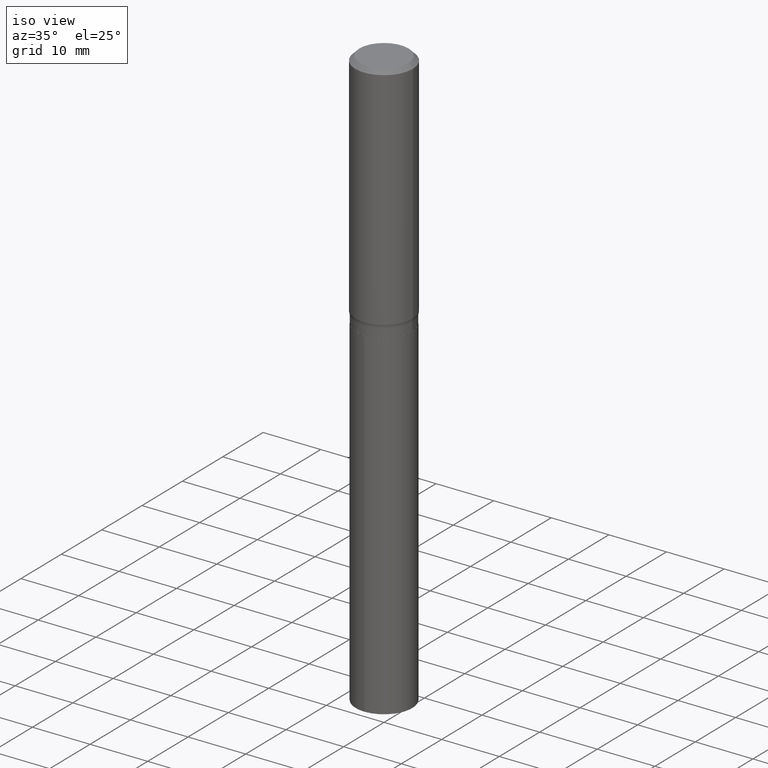
[diagram: clean part render]
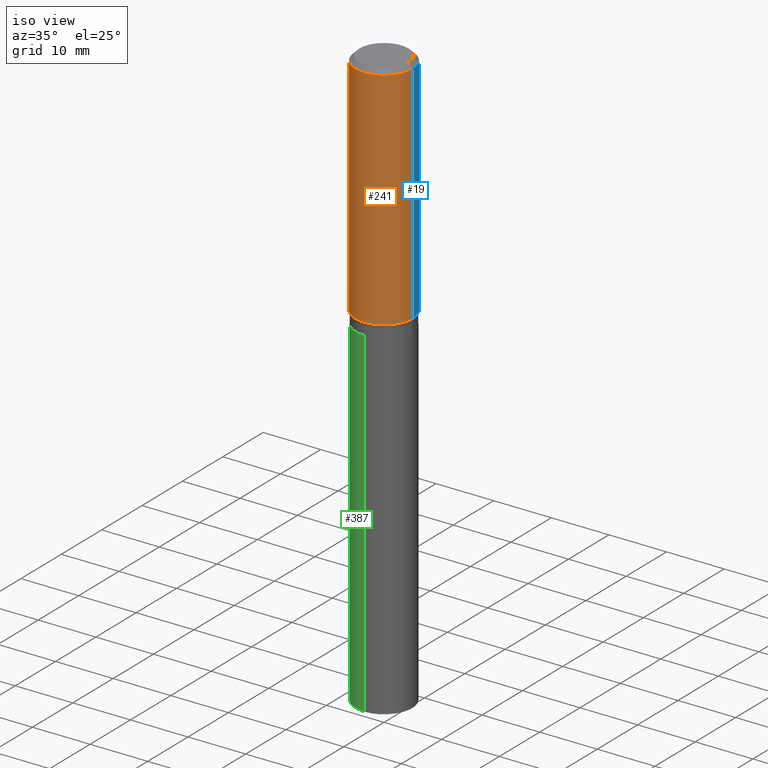
[diagram: same view with three faces highlighted in distinct colors, each labeled with its STEP entity id]
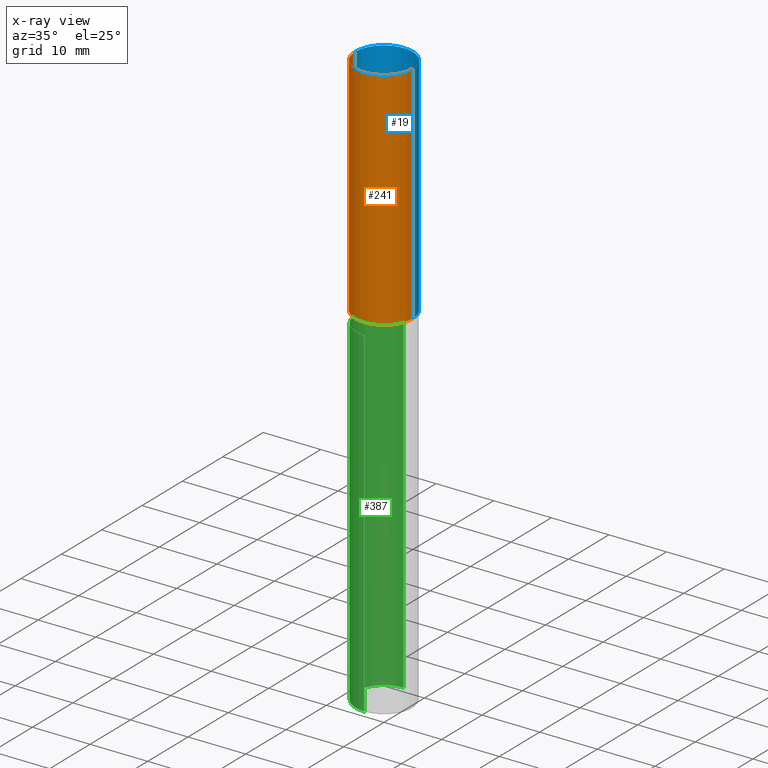
[diagram: x-ray of the same camera — body ghosted, the three highlighted faces saturated]
A machine part, iso view with three faces highlighted in distinct colors.
The next image is the same camera in x-ray (body ghosted, the three faces saturated) — at least one of them is partly hidden behind the body in this view.
Their STEP definitions:

[orange] entity #241 — the highlighted cylindrical surface (edge-blend (fillet) strip) has radius 5 mm, axis along (-0, 0, 1).
#12 = CARTESIAN_POINT ( 'NONE',  ( 3.840835966638190435E-29, -5.483695833354082254E-15, -1.570592909189378661 ) ) ;
#38 = ORIENTED_EDGE ( 'NONE', *, *, #279, .F. ) ;
#45 = CARTESIAN_POINT ( 'NONE',  ( 0.000000000000000000, 0.000000000000000000, 0.000000000000000000 ) ) ;
#53 = CARTESIAN_POINT ( 'NONE',  ( -0.1968500000000001082, 1.398703375343757985E-15, -9.682923725166787881E-30 ) ) ;
#73 = CARTESIAN_POINT ( 'NONE',  ( -0.1968500000000000250, -1.394691898949628788E-15, -0.02952750000000020636 ) ) ;
#78 = LINE ( 'NONE', #53, #197 ) ;
#81 = DIRECTION ( 'NONE',  ( 1.000000000000000000, -6.982962677686266711E-15, 4.876176775795935793E-29 ) ) ;
#89 = CIRCLE ( 'NONE', #454, 0.1968500000000001915 ) ;
#118 = CARTESIAN_POINT ( 'NONE',  ( 7.220858017463212989E-31, -1.030947152326917102E-16, -0.02952750000000020636 ) ) ;
#130 = CIRCLE ( 'NONE', #199, 0.1968500000000000250 ) ;
#143 = VERTEX_POINT ( 'NONE', #337 ) ;
#165 = CYLINDRICAL_SURFACE ( 'NONE', #219, 0.1968500000000001082 ) ;
#175 = EDGE_LOOP ( 'NONE', ( #221, #322, #294, #38 ) ) ;
#179 = EDGE_CURVE ( 'NONE', #363, #143, #295, .T. ) ;
#197 = VECTOR ( 'NONE', #423, 39.37007874015748143 ) ;
#199 = AXIS2_PLACEMENT_3D ( 'NONE', #118, #358, #424 ) ;
#219 = AXIS2_PLACEMENT_3D ( 'NONE', #45, #467, #81 ) ;
#221 = ORIENTED_EDGE ( 'NONE', *, *, #378, .F. ) ;
#224 = VERTEX_POINT ( 'NONE', #73 ) ;
#241 = ADVANCED_FACE ( 'NONE', ( #352 ), #165, .T. ) ;
#279 = EDGE_CURVE ( 'NONE', #224, #143, #130, .T. ) ;
#294 = ORIENTED_EDGE ( 'NONE', *, *, #179, .T. ) ;
#295 = LINE ( 'NONE', #372, #303 ) ;
#301 = VERTEX_POINT ( 'NONE', #317 ) ;
#303 = VECTOR ( 'NONE', #365, 39.37007874015748143 ) ;
#311 = DIRECTION ( 'NONE',  ( -2.445468806185136597E-29, 3.491481338843145583E-15, 1.000000000000000000 ) ) ;
#317 = CARTESIAN_POINT ( 'NONE',  ( -0.1968500000000001915, -4.084992458010324467E-15, -1.570592909189378661 ) ) ;
#322 = ORIENTED_EDGE ( 'NONE', *, *, #422, .T. ) ;
#337 = CARTESIAN_POINT ( 'NONE',  ( 0.1968500000000000250, -1.477690918335233294E-15, -0.02952750000000020636 ) ) ;
#352 = FACE_OUTER_BOUND ( 'NONE', #175, .T. ) ;
#358 = DIRECTION ( 'NONE',  ( -2.445468806185136597E-29, 3.491481338843145583E-15, 1.000000000000000000 ) ) ;
#363 = VERTEX_POINT ( 'NONE', #395 ) ;
#365 = DIRECTION ( 'NONE',  ( -2.445468806185136877E-29, 3.491481338843145188E-15, 1.000000000000000000 ) ) ;
#372 = CARTESIAN_POINT ( 'NONE',  ( 0.1968500000000001082, -1.374596203102542397E-15, 9.598753983154305062E-30 ) ) ;
#378 = EDGE_CURVE ( 'NONE', #301, #224, #78, .T. ) ;
#395 = CARTESIAN_POINT ( 'NONE',  ( 0.1968500000000001915, -6.858292036456625440E-15, -1.570592909189378661 ) ) ;
#402 = DIRECTION ( 'NONE',  ( 1.000000000000000000, -6.982962677686266711E-15, 0.000000000000000000 ) ) ;
#422 = EDGE_CURVE ( 'NONE', #301, #363, #89, .T. ) ;
#423 = DIRECTION ( 'NONE',  ( -2.445468806185136877E-29, 3.491481338843145188E-15, 1.000000000000000000 ) ) ;
#424 = DIRECTION ( 'NONE',  ( 1.000000000000000000, -6.982962677686265922E-15, 0.000000000000000000 ) ) ;
#454 = AXIS2_PLACEMENT_3D ( 'NONE', #12, #311, #402 ) ;
#467 = DIRECTION ( 'NONE',  ( -2.445468806185136597E-29, 3.491481338843145583E-15, 1.000000000000000000 ) ) ;

[blue] entity #19 — the highlighted cylindrical surface (edge-blend (fillet) strip) has radius 5 mm, axis along (-0, 0, 1).
#10 = CARTESIAN_POINT ( 'NONE',  ( 0.000000000000000000, 0.000000000000000000, 0.000000000000000000 ) ) ;
#19 = ADVANCED_FACE ( 'NONE', ( #243 ), #393, .T. ) ;
#26 = EDGE_LOOP ( 'NONE', ( #63, #369, #427, #101 ) ) ;
#33 = CARTESIAN_POINT ( 'NONE',  ( 7.220858017463212989E-31, -1.030947152326917102E-16, -0.02952750000000020636 ) ) ;
#53 = CARTESIAN_POINT ( 'NONE',  ( -0.1968500000000001082, 1.398703375343757985E-15, -9.682923725166787881E-30 ) ) ;
#63 = ORIENTED_EDGE ( 'NONE', *, *, #206, .T. ) ;
#73 = CARTESIAN_POINT ( 'NONE',  ( -0.1968500000000000250, -1.394691898949628788E-15, -0.02952750000000020636 ) ) ;
#78 = LINE ( 'NONE', #53, #197 ) ;
#101 = ORIENTED_EDGE ( 'NONE', *, *, #179, .F. ) ;
#113 = CIRCLE ( 'NONE', #368, 0.1968500000000000250 ) ;
#131 = DIRECTION ( 'NONE',  ( -2.445468806185136597E-29, 3.491481338843145583E-15, 1.000000000000000000 ) ) ;
#143 = VERTEX_POINT ( 'NONE', #337 ) ;
#152 = CARTESIAN_POINT ( 'NONE',  ( 3.840835966638190435E-29, -5.483695833354082254E-15, -1.570592909189378661 ) ) ;
#158 = DIRECTION ( 'NONE',  ( -2.445468806185136597E-29, 3.491481338843145583E-15, 1.000000000000000000 ) ) ;
#178 = CIRCLE ( 'NONE', #287, 0.1968500000000001915 ) ;
#179 = EDGE_CURVE ( 'NONE', #363, #143, #295, .T. ) ;
#192 = AXIS2_PLACEMENT_3D ( 'NONE', #10, #158, #278 ) ;
#197 = VECTOR ( 'NONE', #423, 39.37007874015748143 ) ;
#206 = EDGE_CURVE ( 'NONE', #363, #301, #178, .T. ) ;
#224 = VERTEX_POINT ( 'NONE', #73 ) ;
#227 = DIRECTION ( 'NONE',  ( -2.445468806185136597E-29, 3.491481338843145583E-15, 1.000000000000000000 ) ) ;
#243 = FACE_OUTER_BOUND ( 'NONE', #26, .T. ) ;
#278 = DIRECTION ( 'NONE',  ( 1.000000000000000000, -6.982962677686266711E-15, 4.876176775795935793E-29 ) ) ;
#287 = AXIS2_PLACEMENT_3D ( 'NONE', #152, #227, #415 ) ;
#290 = DIRECTION ( 'NONE',  ( 1.000000000000000000, -6.982962677686265922E-15, 0.000000000000000000 ) ) ;
#295 = LINE ( 'NONE', #372, #303 ) ;
#301 = VERTEX_POINT ( 'NONE', #317 ) ;
#303 = VECTOR ( 'NONE', #365, 39.37007874015748143 ) ;
#317 = CARTESIAN_POINT ( 'NONE',  ( -0.1968500000000001915, -4.084992458010324467E-15, -1.570592909189378661 ) ) ;
#337 = CARTESIAN_POINT ( 'NONE',  ( 0.1968500000000000250, -1.477690918335233294E-15, -0.02952750000000020636 ) ) ;
#363 = VERTEX_POINT ( 'NONE', #395 ) ;
#365 = DIRECTION ( 'NONE',  ( -2.445468806185136877E-29, 3.491481338843145188E-15, 1.000000000000000000 ) ) ;
#368 = AXIS2_PLACEMENT_3D ( 'NONE', #33, #131, #290 ) ;
#369 = ORIENTED_EDGE ( 'NONE', *, *, #378, .T. ) ;
#372 = CARTESIAN_POINT ( 'NONE',  ( 0.1968500000000001082, -1.374596203102542397E-15, 9.598753983154305062E-30 ) ) ;
#378 = EDGE_CURVE ( 'NONE', #301, #224, #78, .T. ) ;
#393 = CYLINDRICAL_SURFACE ( 'NONE', #192, 0.1968500000000001082 ) ;
#395 = CARTESIAN_POINT ( 'NONE',  ( 0.1968500000000001915, -6.858292036456625440E-15, -1.570592909189378661 ) ) ;
#415 = DIRECTION ( 'NONE',  ( 1.000000000000000000, -6.982962677686266711E-15, 0.000000000000000000 ) ) ;
#423 = DIRECTION ( 'NONE',  ( -2.445468806185136877E-29, 3.491481338843145188E-15, 1.000000000000000000 ) ) ;
#427 = ORIENTED_EDGE ( 'NONE', *, *, #437, .F. ) ;
#437 = EDGE_CURVE ( 'NONE', #143, #224, #113, .T. ) ;

[green] entity #387 — the highlighted cylindrical surface (edge-blend (fillet) strip) has radius 4.8997 mm, axis along (-0, 0, 1).
#5 = CIRCLE ( 'NONE', #275, 0.1928999999999999881 ) ;
#21 = CYLINDRICAL_SURFACE ( 'NONE', #329, 0.1928999999999999881 ) ;
#49 = DIRECTION ( 'NONE',  ( -2.445507172700810819E-29, 3.491426395809013417E-15, 1.000000000000000000 ) ) ;
#54 = CARTESIAN_POINT ( 'NONE',  ( -1.347013500525640042E-15, -0.1929000000000057335, -1.653399999999999093 ) ) ;
#56 = CARTESIAN_POINT ( 'NONE',  ( 1.370636937281330599E-15, 0.1928999999999942150, -1.653400000000000203 ) ) ;
#70 = ORIENTED_EDGE ( 'NONE', *, *, #72, .T. ) ;
#72 = EDGE_CURVE ( 'NONE', #400, #325, #416, .T. ) ;
#87 = DIRECTION ( 'NONE',  ( -2.445507172700810819E-29, 3.491426395809013811E-15, 1.000000000000000000 ) ) ;
#98 = VERTEX_POINT ( 'NONE', #54 ) ;
#108 = AXIS2_PLACEMENT_3D ( 'NONE', #167, #87, #471 ) ;
#125 = DIRECTION ( 'NONE',  ( -6.982962677686265133E-15, -1.000000000000000000, 2.832398127179122126E-15 ) ) ;
#141 = ORIENTED_EDGE ( 'NONE', *, *, #261, .F. ) ;
#148 = VECTOR ( 'NONE', #49, 39.37007874015748143 ) ;
#162 = CARTESIAN_POINT ( 'NONE',  ( 4.043338124146503856E-29, -5.772815245643255193E-15, -1.653399999999999537 ) ) ;
#167 = CARTESIAN_POINT ( 'NONE',  ( 9.725873491592949030E-29, -1.388571476951150390E-14, -3.977063341036398914 ) ) ;
#195 = ORIENTED_EDGE ( 'NONE', *, *, #251, .T. ) ;
#203 = DIRECTION ( 'NONE',  ( -2.445507172700810819E-29, 3.491426395809013811E-15, 1.000000000000000000 ) ) ;
#207 = DIRECTION ( 'NONE',  ( -6.982962677686265133E-15, -1.000000000000000000, 2.832398127179122126E-15 ) ) ;
#231 = EDGE_CURVE ( 'NONE', #400, #414, #341, .T. ) ;
#232 = CARTESIAN_POINT ( 'NONE',  ( -1.347013500525583441E-15, -0.1929000000000139214, -3.977063341036398469 ) ) ;
#234 = CARTESIAN_POINT ( 'NONE',  ( 4.043338124146503856E-29, -5.772815245643255193E-15, -1.653399999999999537 ) ) ;
#251 = EDGE_CURVE ( 'NONE', #325, #98, #277, .T. ) ;
#252 = ORIENTED_EDGE ( 'NONE', *, *, #231, .F. ) ;
#261 = EDGE_CURVE ( 'NONE', #414, #98, #5, .T. ) ;
#264 = CARTESIAN_POINT ( 'NONE',  ( 1.370636937281273406E-15, 0.1928999999999942150, -1.653400000000000203 ) ) ;
#269 = DIRECTION ( 'NONE',  ( -2.445507172700810819E-29, 3.491426395809013811E-15, 1.000000000000000000 ) ) ;
#271 = FACE_OUTER_BOUND ( 'NONE', #284, .T. ) ;
#275 = AXIS2_PLACEMENT_3D ( 'NONE', #162, #203, #125 ) ;
#277 = LINE ( 'NONE', #314, #429 ) ;
#284 = EDGE_LOOP ( 'NONE', ( #252, #70, #195, #141 ) ) ;
#306 = DIRECTION ( 'NONE',  ( -2.445507172700810819E-29, 3.491426395809013417E-15, 1.000000000000000000 ) ) ;
#314 = CARTESIAN_POINT ( 'NONE',  ( -1.347013500525640042E-15, -0.1929000000000057335, -1.653399999999999093 ) ) ;
#325 = VERTEX_POINT ( 'NONE', #232 ) ;
#329 = AXIS2_PLACEMENT_3D ( 'NONE', #234, #269, #207 ) ;
#341 = LINE ( 'NONE', #264, #148 ) ;
#382 = CARTESIAN_POINT ( 'NONE',  ( 1.370636937281330401E-15, 0.1928999999999861104, -3.977063341036399802 ) ) ;
#387 = ADVANCED_FACE ( 'NONE', ( #271 ), #21, .T. ) ;
#400 = VERTEX_POINT ( 'NONE', #382 ) ;
#414 = VERTEX_POINT ( 'NONE', #56 ) ;
#416 = CIRCLE ( 'NONE', #108, 0.1928999999999999881 ) ;
#429 = VECTOR ( 'NONE', #306, 39.37007874015748143 ) ;
#471 = DIRECTION ( 'NONE',  ( -6.982962677686265133E-15, -1.000000000000000000, 2.832398127179122126E-15 ) ) ;